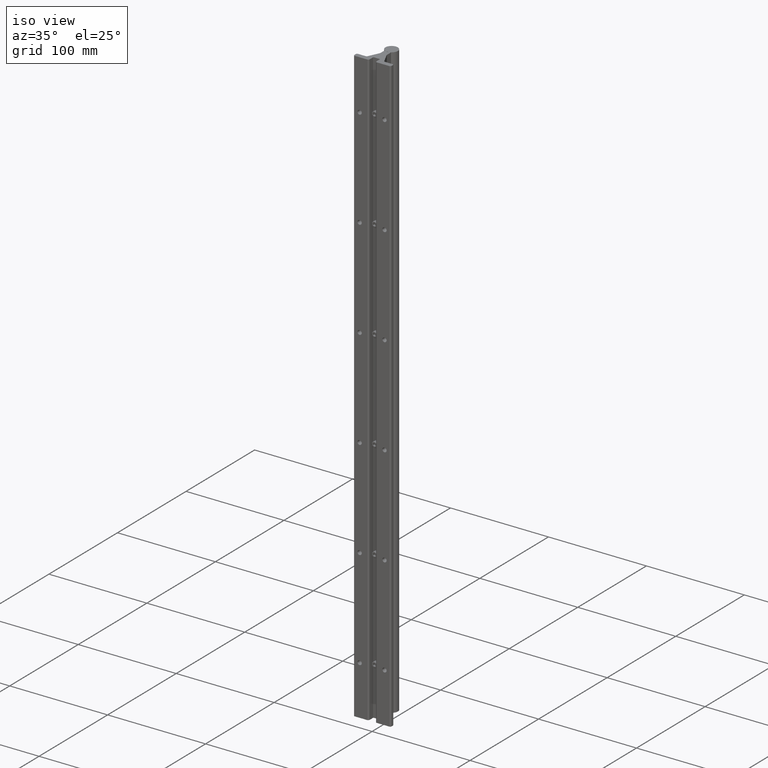
[diagram: clean part render]
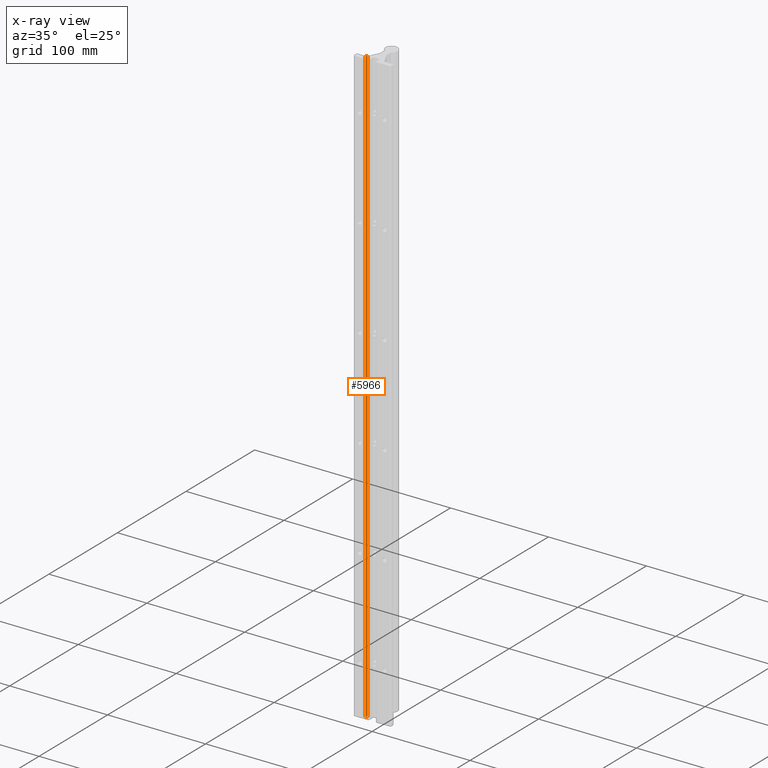
[diagram: x-ray — body ghosted, one internal face saturated and labeled with its STEP entity id]
A machine part, iso view, then the same camera in x-ray: the body is ghosted and one INTERNAL B-rep face — a face not visible from any outside direction — is saturated and labeled: STEP entity #5966.
In plain terms, the highlighted cylindrical surface (edge-blend (fillet) strip) has radius 1.524 mm, axis along (0, 0, 1).
Its self-contained STEP definition (entity closure, byte-faithful):
#338 = CARTESIAN_POINT ( 'NONE',  ( -0.3338457484000001418, 0.2221429042999998049, 0.000000000000000000 ) ) ;
#639 = CARTESIAN_POINT ( 'NONE',  ( -0.3882242156000000333, 0.1875000000000013600, -25.75252057657289129 ) ) ;
#991 = VERTEX_POINT ( 'NONE', #6539 ) ;
#1103 = CARTESIAN_POINT ( 'NONE',  ( -0.3882242156242674547, 0.2474999999999978051, -25.75252057657289129 ) ) ;
#1252 = CARTESIAN_POINT ( 'NONE',  ( -0.3338457484000001418, 0.2221429042999998049, -25.75252057657289129 ) ) ;
#1290 = CARTESIAN_POINT ( 'NONE',  ( -0.3338457484000001418, 0.2221429042999998327, -24.00000000000000355 ) ) ;
#2263 = VERTEX_POINT ( 'NONE', #338 ) ;
#2380 = FACE_OUTER_BOUND ( 'NONE', #8412, .T. ) ;
#2403 = CIRCLE ( 'NONE', #12859, 0.05999999999999649364 ) ;
#2479 = CIRCLE ( 'NONE', #12720, 0.05999999999999649364 ) ;
#2742 = ORIENTED_EDGE ( 'NONE', *, *, #4912, .F. ) ;
#3151 = CYLINDRICAL_SURFACE ( 'NONE', #6803, 0.05999999999999649364 ) ;
#3553 = EDGE_CURVE ( 'NONE', #2263, #3568, #2479, .T. ) ;
#3568 = VERTEX_POINT ( 'NONE', #8772 ) ;
#3612 = ORIENTED_EDGE ( 'NONE', *, *, #10548, .F. ) ;
#4219 = DIRECTION ( 'NONE',  ( 1.000000000000000000, 0.000000000000000000, 0.000000000000000000 ) ) ;
#4845 = DIRECTION ( 'NONE',  ( -0.000000000000000000, -0.000000000000000000, -1.000000000000000000 ) ) ;
#4912 = EDGE_CURVE ( 'NONE', #991, #8837, #2403, .T. ) ;
#4996 = DIRECTION ( 'NONE',  ( 0.000000000000000000, 0.000000000000000000, 1.000000000000000000 ) ) ;
#5156 = EDGE_CURVE ( 'NONE', #991, #3568, #11027, .T. ) ;
#5424 = DIRECTION ( 'NONE',  ( 0.000000000000000000, 0.000000000000000000, 1.000000000000000000 ) ) ;
#5966 = ADVANCED_FACE ( 'NONE', ( #2380 ), #3151, .F. ) ;
#6539 = CARTESIAN_POINT ( 'NONE',  ( -0.3882242156000000333, 0.1875000000000013600, -24.00000000000000355 ) ) ;
#6564 = VECTOR ( 'NONE', #7960, 39.37007874015748143 ) ;
#6803 = AXIS2_PLACEMENT_3D ( 'NONE', #1103, #5424, #4219 ) ;
#6879 = DIRECTION ( 'NONE',  ( 1.000000000000000000, 0.000000000000000000, 0.000000000000000000 ) ) ;
#6943 = CARTESIAN_POINT ( 'NONE',  ( -0.3882242156242674547, 0.2474999999999978051, 0.000000000000000000 ) ) ;
#7960 = DIRECTION ( 'NONE',  ( 0.000000000000000000, 0.000000000000000000, 1.000000000000000000 ) ) ;
#8412 = EDGE_LOOP ( 'NONE', ( #2742, #13103, #9920, #3612 ) ) ;
#8633 = LINE ( 'NONE', #1252, #12993 ) ;
#8772 = CARTESIAN_POINT ( 'NONE',  ( -0.3882242156000000333, 0.1875000000000013600, 0.000000000000000000 ) ) ;
#8837 = VERTEX_POINT ( 'NONE', #1290 ) ;
#9920 = ORIENTED_EDGE ( 'NONE', *, *, #3553, .F. ) ;
#10548 = EDGE_CURVE ( 'NONE', #8837, #2263, #8633, .T. ) ;
#11027 = LINE ( 'NONE', #639, #6564 ) ;
#11326 = CARTESIAN_POINT ( 'NONE',  ( -0.3882242156242674547, 0.2474999999999978051, -24.00000000000000355 ) ) ;
#11707 = DIRECTION ( 'NONE',  ( 0.000000000000000000, 0.000000000000000000, 1.000000000000000000 ) ) ;
#12337 = DIRECTION ( 'NONE',  ( 1.000000000000000000, 0.000000000000000000, 0.000000000000000000 ) ) ;
#12720 = AXIS2_PLACEMENT_3D ( 'NONE', #6943, #4845, #6879 ) ;
#12859 = AXIS2_PLACEMENT_3D ( 'NONE', #11326, #4996, #12337 ) ;
#12993 = VECTOR ( 'NONE', #11707, 39.37007874015748143 ) ;
#13103 = ORIENTED_EDGE ( 'NONE', *, *, #5156, .T. ) ;